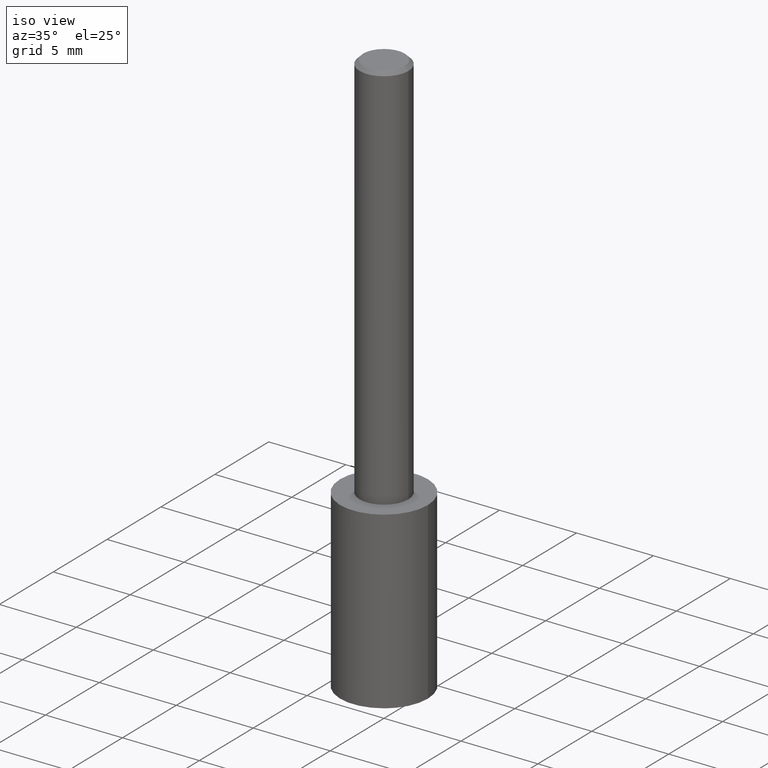
[diagram: clean part render]
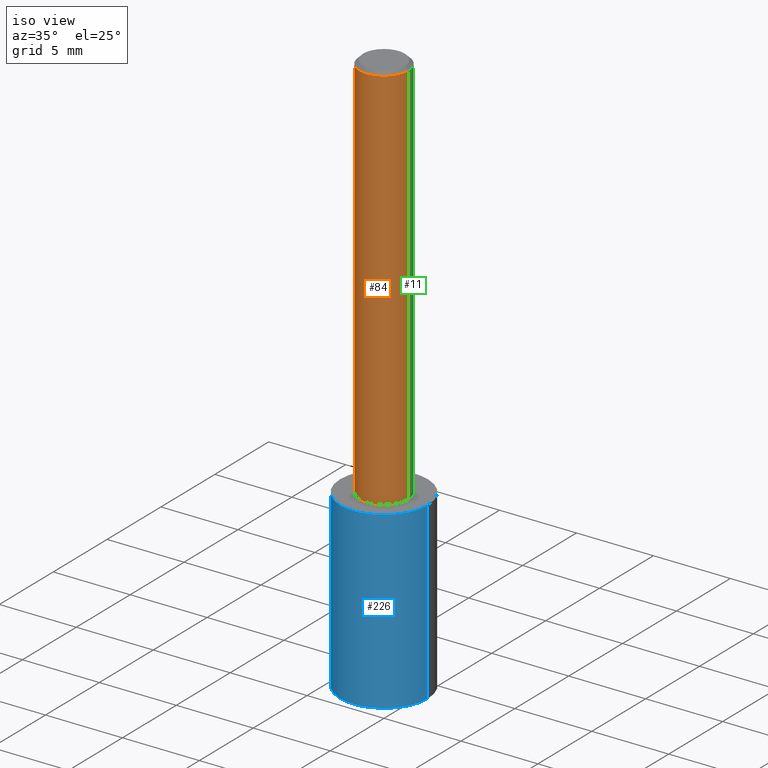
[diagram: same view with three faces highlighted in distinct colors, each labeled with its STEP entity id]
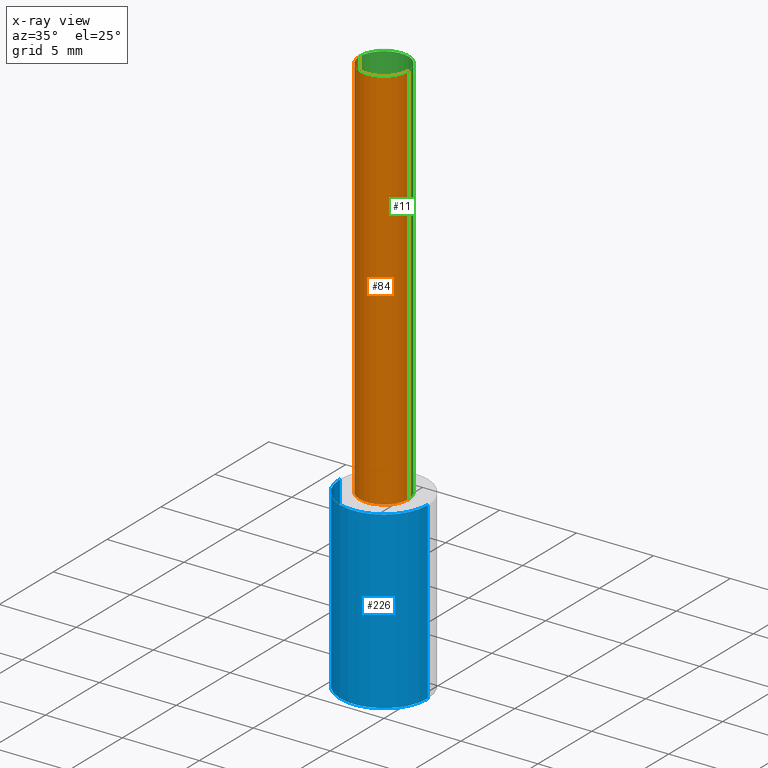
[diagram: x-ray of the same camera — body ghosted, the three highlighted faces saturated]
A machine part, iso view with three faces highlighted in distinct colors.
The next image is the same camera in x-ray (body ghosted, the three faces saturated) — at least one of them is partly hidden behind the body in this view.
Their STEP definitions:

[orange] entity #84 — the highlighted cylindrical surface (edge-blend (fillet) strip) has radius 1.5875 mm, axis along (-0, 0, 1).
#12 = DIRECTION ( 'NONE',  ( 1.000000000000000000, -6.982962677686266711E-15, 0.000000000000000000 ) ) ;
#13 = ORIENTED_EDGE ( 'NONE', *, *, #117, .T. ) ;
#14 = DIRECTION ( 'NONE',  ( -2.445468806185136597E-29, 3.491481338843145583E-15, 1.000000000000000000 ) ) ;
#22 = VECTOR ( 'NONE', #162, 39.37007874015748143 ) ;
#38 = LINE ( 'NONE', #169, #158 ) ;
#42 = DIRECTION ( 'NONE',  ( 1.000000000000000000, -6.982962677686264344E-15, 0.000000000000000000 ) ) ;
#43 = EDGE_CURVE ( 'NONE', #164, #194, #213, .T. ) ;
#58 = AXIS2_PLACEMENT_3D ( 'NONE', #330, #251, #42 ) ;
#59 = ORIENTED_EDGE ( 'NONE', *, *, #131, .T. ) ;
#67 = CARTESIAN_POINT ( 'NONE',  ( 2.292627005798582375E-31, -3.273263755165472650E-17, -0.009375000000000067307 ) ) ;
#84 = ADVANCED_FACE ( 'NONE', ( #87 ), #332, .T. ) ;
#87 = FACE_OUTER_BOUND ( 'NONE', #134, .T. ) ;
#112 = CARTESIAN_POINT ( 'NONE',  ( 0.000000000000000000, 0.000000000000000000, 0.000000000000000000 ) ) ;
#114 = EDGE_CURVE ( 'NONE', #194, #243, #210, .T. ) ;
#117 = EDGE_CURVE ( 'NONE', #214, #243, #38, .T. ) ;
#120 = CARTESIAN_POINT ( 'NONE',  ( 0.06250000000000012490, -3.927916506198539224E-15, -1.000000000000000222 ) ) ;
#130 = AXIS2_PLACEMENT_3D ( 'NONE', #112, #305, #258 ) ;
#131 = EDGE_CURVE ( 'NONE', #164, #214, #299, .T. ) ;
#134 = EDGE_LOOP ( 'NONE', ( #242, #59, #13, #137 ) ) ;
#137 = ORIENTED_EDGE ( 'NONE', *, *, #114, .F. ) ;
#147 = DIRECTION ( 'NONE',  ( -2.445468806185136877E-29, 3.491481338843145188E-15, 1.000000000000000000 ) ) ;
#158 = VECTOR ( 'NONE', #147, 39.37007874015748143 ) ;
#162 = DIRECTION ( 'NONE',  ( -2.445468806185136877E-29, 3.491481338843145188E-15, 1.000000000000000000 ) ) ;
#164 = VERTEX_POINT ( 'NONE', #248 ) ;
#169 = CARTESIAN_POINT ( 'NONE',  ( 0.06250000000000006939, -4.364351673553921624E-16, 3.047610484872463374E-30 ) ) ;
#185 = CARTESIAN_POINT ( 'NONE',  ( -0.06250000000000006939, 4.440892098500631092E-16, -3.074334431409319267E-30 ) ) ;
#194 = VERTEX_POINT ( 'NONE', #252 ) ;
#210 = CIRCLE ( 'NONE', #321, 0.06250000000000000000 ) ;
#213 = LINE ( 'NONE', #185, #22 ) ;
#214 = VERTEX_POINT ( 'NONE', #120 ) ;
#221 = CARTESIAN_POINT ( 'NONE',  ( 0.06250000000000000000, -4.691678049070464390E-16, -0.009375000000000067307 ) ) ;
#242 = ORIENTED_EDGE ( 'NONE', *, *, #43, .F. ) ;
#243 = VERTEX_POINT ( 'NONE', #221 ) ;
#248 = CARTESIAN_POINT ( 'NONE',  ( -0.06250000000000012490, -1.318017778347335489E-15, -1.000000000000000222 ) ) ;
#251 = DIRECTION ( 'NONE',  ( -2.445468806185136597E-29, 3.491481338843145583E-15, 1.000000000000000000 ) ) ;
#252 = CARTESIAN_POINT ( 'NONE',  ( -0.06250000000000000000, -1.318017778347336672E-15, -0.009375000000000067307 ) ) ;
#258 = DIRECTION ( 'NONE',  ( 1.000000000000000000, -6.982962677686266711E-15, 4.876176775795935793E-29 ) ) ;
#299 = CIRCLE ( 'NONE', #58, 0.06250000000000012490 ) ;
#305 = DIRECTION ( 'NONE',  ( -2.445468806185136597E-29, 3.491481338843145583E-15, 1.000000000000000000 ) ) ;
#321 = AXIS2_PLACEMENT_3D ( 'NONE', #67, #14, #12 ) ;
#330 = CARTESIAN_POINT ( 'NONE',  ( 2.445468806185137438E-29, -3.491481338843146371E-15, -1.000000000000000222 ) ) ;
#332 = CYLINDRICAL_SURFACE ( 'NONE', #130, 0.06250000000000006939 ) ;

[blue] entity #226 — the highlighted cylindrical surface (partial cylindrical patch) has radius 2.8499 mm, axis along (-0, 0, 1).
#8 = AXIS2_PLACEMENT_3D ( 'NONE', #19, #229, #197 ) ;
#19 = CARTESIAN_POINT ( 'NONE',  ( 2.445468806185137438E-29, -3.491481338843146371E-15, -1.000000000000000222 ) ) ;
#23 = EDGE_CURVE ( 'NONE', #191, #187, #283, .T. ) ;
#26 = DIRECTION ( 'NONE',  ( -2.445468806185136877E-29, 3.491481338843145188E-15, 1.000000000000000000 ) ) ;
#34 = VERTEX_POINT ( 'NONE', #108 ) ;
#41 = VERTEX_POINT ( 'NONE', #159 ) ;
#44 = CARTESIAN_POINT ( 'NONE',  ( 0.1121999999999999803, -5.838037097303720195E-15, -1.447680280755009541 ) ) ;
#51 = CARTESIAN_POINT ( 'NONE',  ( 0.1122000000000000081, -4.274969751279545967E-15, -1.000000000000000222 ) ) ;
#66 = CARTESIAN_POINT ( 'NONE',  ( -0.1122000000000000081, -2.694252389320313807E-15, -1.000000000000000222 ) ) ;
#74 = DIRECTION ( 'NONE',  ( -2.445468806185136597E-29, 3.491481338843145583E-15, 1.000000000000000000 ) ) ;
#77 = CIRCLE ( 'NONE', #234, 0.1122000000000000081 ) ;
#86 = ORIENTED_EDGE ( 'NONE', *, *, #327, .T. ) ;
#88 = ORIENTED_EDGE ( 'NONE', *, *, #23, .T. ) ;
#94 = DIRECTION ( 'NONE',  ( 1.000000000000000000, -6.982962677686266711E-15, 0.000000000000000000 ) ) ;
#108 = CARTESIAN_POINT ( 'NONE',  ( -0.1122000000000000081, -3.475786062332401316E-15, -1.000000000000000222 ) ) ;
#110 = AXIS2_PLACEMENT_3D ( 'NONE', #121, #228, #307 ) ;
#121 = CARTESIAN_POINT ( 'NONE',  ( 3.540256967915716631E-29, -5.054548684867320994E-15, -1.447680280755009541 ) ) ;
#136 = VECTOR ( 'NONE', #26, 39.37007874015748143 ) ;
#138 = CYLINDRICAL_SURFACE ( 'NONE', #8, 0.1122000000000000081 ) ;
#140 = LINE ( 'NONE', #66, #173 ) ;
#143 = FACE_OUTER_BOUND ( 'NONE', #209, .T. ) ;
#146 = CARTESIAN_POINT ( 'NONE',  ( -0.1121999999999999803, -4.257319735344488824E-15, -1.447680280755009541 ) ) ;
#159 = CARTESIAN_POINT ( 'NONE',  ( 0.1122000000000000081, -4.274969751279545178E-15, -1.000000000000000222 ) ) ;
#168 = DIRECTION ( 'NONE',  ( -2.445468806185136877E-29, 3.491481338843145188E-15, 1.000000000000000000 ) ) ;
#173 = VECTOR ( 'NONE', #168, 39.37007874015748143 ) ;
#187 = VERTEX_POINT ( 'NONE', #44 ) ;
#188 = EDGE_CURVE ( 'NONE', #34, #41, #77, .T. ) ;
#191 = VERTEX_POINT ( 'NONE', #146 ) ;
#197 = DIRECTION ( 'NONE',  ( 1.000000000000000000, -6.982962677686266711E-15, 0.000000000000000000 ) ) ;
#209 = EDGE_LOOP ( 'NONE', ( #287, #88, #86, #250 ) ) ;
#226 = ADVANCED_FACE ( 'NONE', ( #143 ), #138, .T. ) ;
#228 = DIRECTION ( 'NONE',  ( -2.445468806185136597E-29, 3.491481338843145583E-15, 1.000000000000000000 ) ) ;
#229 = DIRECTION ( 'NONE',  ( -2.445468806185136597E-29, 3.491481338843145583E-15, 1.000000000000000000 ) ) ;
#234 = AXIS2_PLACEMENT_3D ( 'NONE', #308, #74, #94 ) ;
#250 = ORIENTED_EDGE ( 'NONE', *, *, #188, .F. ) ;
#283 = CIRCLE ( 'NONE', #110, 0.1122000000000000081 ) ;
#287 = ORIENTED_EDGE ( 'NONE', *, *, #292, .F. ) ;
#292 = EDGE_CURVE ( 'NONE', #191, #34, #140, .T. ) ;
#307 = DIRECTION ( 'NONE',  ( 1.000000000000000000, -6.982962677686266711E-15, 0.000000000000000000 ) ) ;
#308 = CARTESIAN_POINT ( 'NONE',  ( 2.445468806185136877E-29, -3.491481338843145977E-15, -1.000000000000000222 ) ) ;
#314 = LINE ( 'NONE', #51, #136 ) ;
#327 = EDGE_CURVE ( 'NONE', #187, #41, #314, .T. ) ;

[green] entity #11 — the highlighted cylindrical surface (edge-blend (fillet) strip) has radius 1.5875 mm, axis along (-0, 0, 1).
#2 = CARTESIAN_POINT ( 'NONE',  ( 0.000000000000000000, 0.000000000000000000, 0.000000000000000000 ) ) ;
#11 = ADVANCED_FACE ( 'NONE', ( #253 ), #218, .T. ) ;
#18 = DIRECTION ( 'NONE',  ( 1.000000000000000000, -6.982962677686266711E-15, 4.876176775795935793E-29 ) ) ;
#22 = VECTOR ( 'NONE', #162, 39.37007874015748143 ) ;
#32 = ORIENTED_EDGE ( 'NONE', *, *, #117, .F. ) ;
#38 = LINE ( 'NONE', #169, #158 ) ;
#43 = EDGE_CURVE ( 'NONE', #164, #194, #213, .T. ) ;
#60 = DIRECTION ( 'NONE',  ( -2.445468806185136597E-29, 3.491481338843145583E-15, 1.000000000000000000 ) ) ;
#68 = DIRECTION ( 'NONE',  ( -2.445468806185136597E-29, 3.491481338843145583E-15, 1.000000000000000000 ) ) ;
#80 = EDGE_CURVE ( 'NONE', #214, #164, #274, .T. ) ;
#98 = CIRCLE ( 'NONE', #144, 0.06250000000000000000 ) ;
#117 = EDGE_CURVE ( 'NONE', #214, #243, #38, .T. ) ;
#120 = CARTESIAN_POINT ( 'NONE',  ( 0.06250000000000012490, -3.927916506198539224E-15, -1.000000000000000222 ) ) ;
#144 = AXIS2_PLACEMENT_3D ( 'NONE', #335, #149, #155 ) ;
#147 = DIRECTION ( 'NONE',  ( -2.445468806185136877E-29, 3.491481338843145188E-15, 1.000000000000000000 ) ) ;
#149 = DIRECTION ( 'NONE',  ( -2.445468806185136597E-29, 3.491481338843145583E-15, 1.000000000000000000 ) ) ;
#155 = DIRECTION ( 'NONE',  ( 1.000000000000000000, -6.982962677686266711E-15, 0.000000000000000000 ) ) ;
#158 = VECTOR ( 'NONE', #147, 39.37007874015748143 ) ;
#162 = DIRECTION ( 'NONE',  ( -2.445468806185136877E-29, 3.491481338843145188E-15, 1.000000000000000000 ) ) ;
#164 = VERTEX_POINT ( 'NONE', #248 ) ;
#169 = CARTESIAN_POINT ( 'NONE',  ( 0.06250000000000006939, -4.364351673553921624E-16, 3.047610484872463374E-30 ) ) ;
#185 = CARTESIAN_POINT ( 'NONE',  ( -0.06250000000000006939, 4.440892098500631092E-16, -3.074334431409319267E-30 ) ) ;
#194 = VERTEX_POINT ( 'NONE', #252 ) ;
#206 = ORIENTED_EDGE ( 'NONE', *, *, #323, .F. ) ;
#212 = ORIENTED_EDGE ( 'NONE', *, *, #80, .T. ) ;
#213 = LINE ( 'NONE', #185, #22 ) ;
#214 = VERTEX_POINT ( 'NONE', #120 ) ;
#218 = CYLINDRICAL_SURFACE ( 'NONE', #261, 0.06250000000000006939 ) ;
#221 = CARTESIAN_POINT ( 'NONE',  ( 0.06250000000000000000, -4.691678049070464390E-16, -0.009375000000000067307 ) ) ;
#243 = VERTEX_POINT ( 'NONE', #221 ) ;
#247 = EDGE_LOOP ( 'NONE', ( #212, #275, #206, #32 ) ) ;
#248 = CARTESIAN_POINT ( 'NONE',  ( -0.06250000000000012490, -1.318017778347335489E-15, -1.000000000000000222 ) ) ;
#252 = CARTESIAN_POINT ( 'NONE',  ( -0.06250000000000000000, -1.318017778347336672E-15, -0.009375000000000067307 ) ) ;
#253 = FACE_OUTER_BOUND ( 'NONE', #247, .T. ) ;
#261 = AXIS2_PLACEMENT_3D ( 'NONE', #2, #60, #18 ) ;
#269 = CARTESIAN_POINT ( 'NONE',  ( 2.445468806185137438E-29, -3.491481338843146371E-15, -1.000000000000000222 ) ) ;
#274 = CIRCLE ( 'NONE', #336, 0.06250000000000012490 ) ;
#275 = ORIENTED_EDGE ( 'NONE', *, *, #43, .T. ) ;
#310 = DIRECTION ( 'NONE',  ( 1.000000000000000000, -6.982962677686264344E-15, 0.000000000000000000 ) ) ;
#323 = EDGE_CURVE ( 'NONE', #243, #194, #98, .T. ) ;
#335 = CARTESIAN_POINT ( 'NONE',  ( 2.292627005798582375E-31, -3.273263755165472650E-17, -0.009375000000000067307 ) ) ;
#336 = AXIS2_PLACEMENT_3D ( 'NONE', #269, #68, #310 ) ;